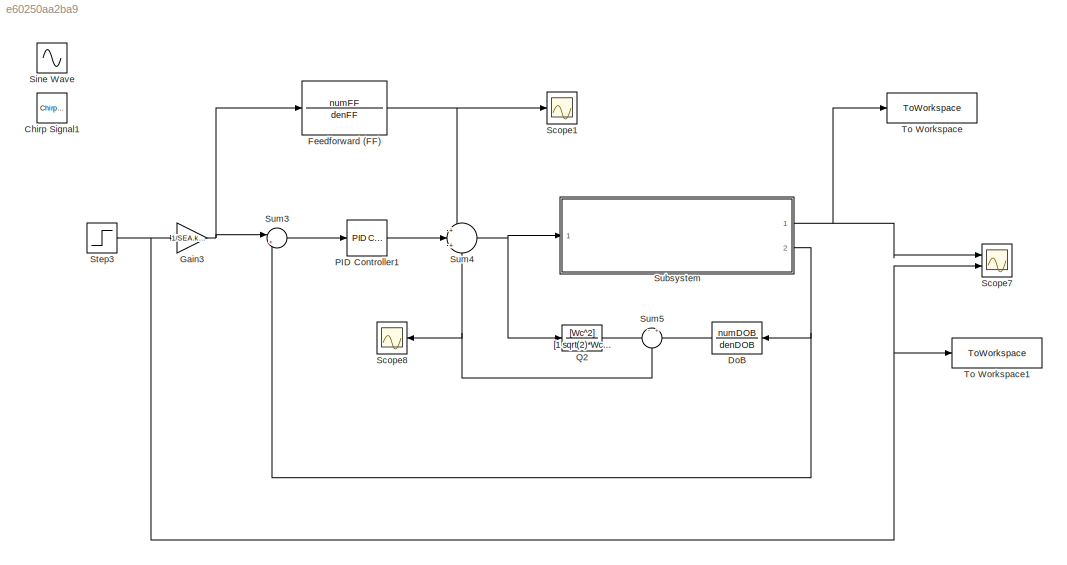
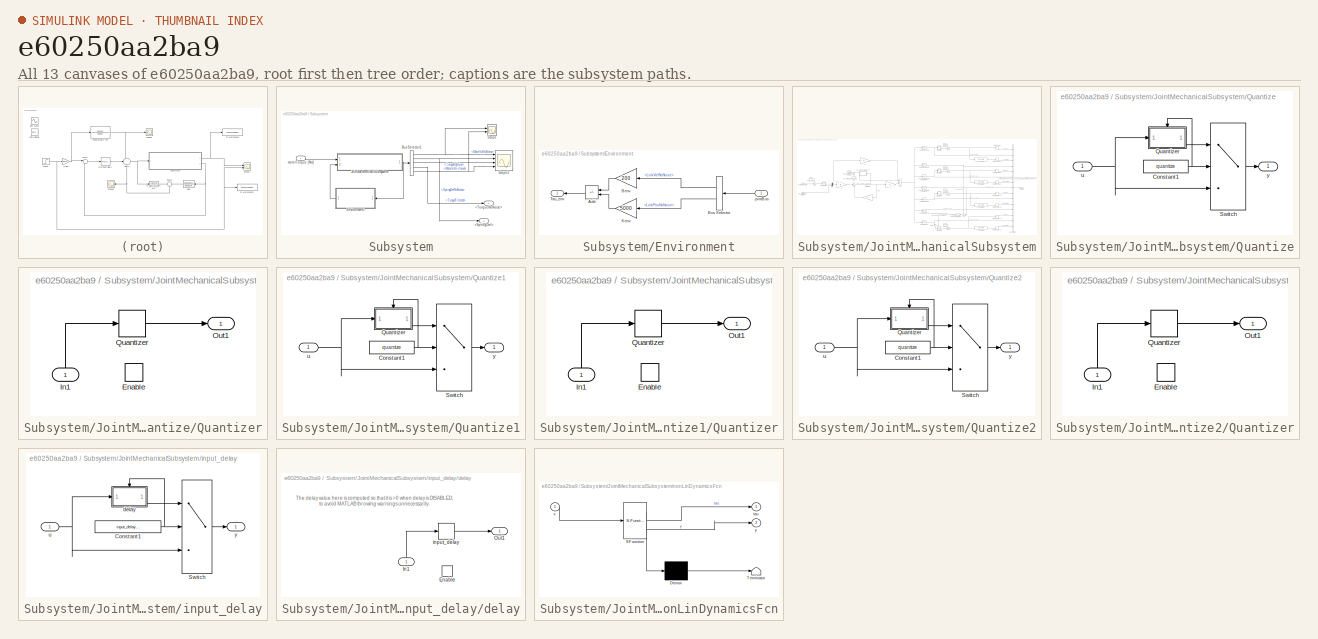
[diagram: thumbnail index - all 13 canvases of the model, root first then tree order]
MODEL slx_e60250aa2ba9
KIND model
CONFIG AbsTol = auto
CONFIG EnableMultiTasking = off
CONFIG FixedStep = 1e-4
CONFIG MaxStep = auto
CONFIG MinStep = auto
CONFIG RelTol = 1e-3
CONFIG SampleTimeConstraint = Unconstrained
CONFIG Solver = FixedStepAuto
CONFIG SolverName = FixedStepAuto
CONFIG StartTime = 0.0
CONFIG StopTime = 10
BLOCK [Reference] Chirp Signal1  REF=simulink/Sources/Chirp Signal
  Ports = [0, 1]
  SourceBlock = simulink/Sources/Chirp Signal
  SourceProductBaseCode = SL
  SourceType = chirp
BLOCK [TransferFcn] DoB
  Denominator = denDOB
  Numerator = numDOB
BLOCK [TransferFcn] Feedforward (FF)
  Denominator = denFF
  Numerator = numFF
BLOCK [Gain] Gain3
  Gain = 1/SEA.k_b
BLOCK [Reference] PID Controller1  REF=simulink/Continuous/PID Controller
  Ports = [1, 1]
  SourceBlock = simulink/Continuous/PID Controller
  SourceProductBaseCode = SL
  SourceType = PID 1dof
BLOCK [TransferFcn] Q2
  Denominator = [1 sqrt(2)*Wc Wc^2]
  Numerator = [Wc^2]
BLOCK [Scope] Scope1
  Floating = off
  NumInputPorts = 1
  Ports = [1]
  ScopeSpecificationString = Simulink.scopes.TimeScopeBlockCfg('CurrentConfiguration', extmgr.ConfigurationSet(extmgr.Configuration('Core','General UI',true),extmgr.Configuration('Core','Source UI',true),extmgr.Configuration('Sources','WiredSimulink',true,'DataLoggingVariableName','ScopeData1'),extmgr.Configuration('Visuals','Time Domain',true,'SerializedDisplays',{struct('MinYLimReal','-7.00599','MaxYLimReal','10.20823','YLa...<+1424ch>
BLOCK [Scope] Scope7
  Floating = off
  NumInputPorts = 2
  Ports = [2]
  ScopeSpecificationString = Simulink.scopes.TimeScopeBlockCfg('CurrentConfiguration', extmgr.ConfigurationSet(extmgr.Configuration('Core','General UI',true),extmgr.Configuration('Core','Source UI',true),extmgr.Configuration('Sources','WiredSimulink',true,'DataLoggingVariableName','ScopeData7'),extmgr.Configuration('Visuals','Time Domain',true,'SerializedDisplays',{struct('MinYLimReal','-1.35888','MaxYLimReal','12.22991','YLa...<+1493ch>
BLOCK [Scope] Scope8
  Floating = off
  NumInputPorts = 1
  Ports = [1]
  ScopeSpecificationString = Simulink.scopes.TimeScopeBlockCfg('CurrentConfiguration', extmgr.ConfigurationSet(extmgr.Configuration('Core','General UI',true),extmgr.Configuration('Core','Source UI',true),extmgr.Configuration('Sources','WiredSimulink',true,'DataLoggingVariableName','ScopeData8'),extmgr.Configuration('Visuals','Time Domain',true,'SerializedDisplays',{struct('MinYLimReal','-446.11655','MaxYLimReal','519.22467','...<+1452ch>
BLOCK [Sin] Sine Wave
  Amplitude = 10
  Frequency = 27.632
  Ports = [0, 1]
  SampleTime = 0
BLOCK [Step] Step3
  After = 10
  SampleTime = 0
BLOCK [SubSystem] Subsystem
  Ports = [1, 2]
  RequestExecContextInheritance = off
BLOCK [Outport] Subsystem/<SpringDef>
  Port = 2
BLOCK [Outport] Subsystem/<TorqueNoNoise>
BLOCK [BusSelector] Subsystem/Bus Selector1
  OutputSignals = MotorVelNoNoise,SpringDefNoNoise,TorqueNoNoise,TorqueFiltered,MotorVelFiltered
  Ports = [1, 5]
BLOCK [SubSystem] Subsystem/Environment
  Ports = [1, 1]
  RequestExecContextInheritance = off
BLOCK [Sum] Subsystem/Environment/Add
  IconShape = rectangular
  Inputs = --
  Ports = [2, 1]
BLOCK [Gain] Subsystem/Environment/Benv
  Gain = 200
BLOCK [BusSelector] Subsystem/Environment/Bus Selector
  OutputSignals = LinkVelNoNoise,LinkPosNoNoise
  Ports = [1, 2]
BLOCK [Gain] Subsystem/Environment/Kenv
  Gain = 5000
BLOCK [Outport] Subsystem/Environment/Tau_env
BLOCK [Inport] Subsystem/Environment/jointBus
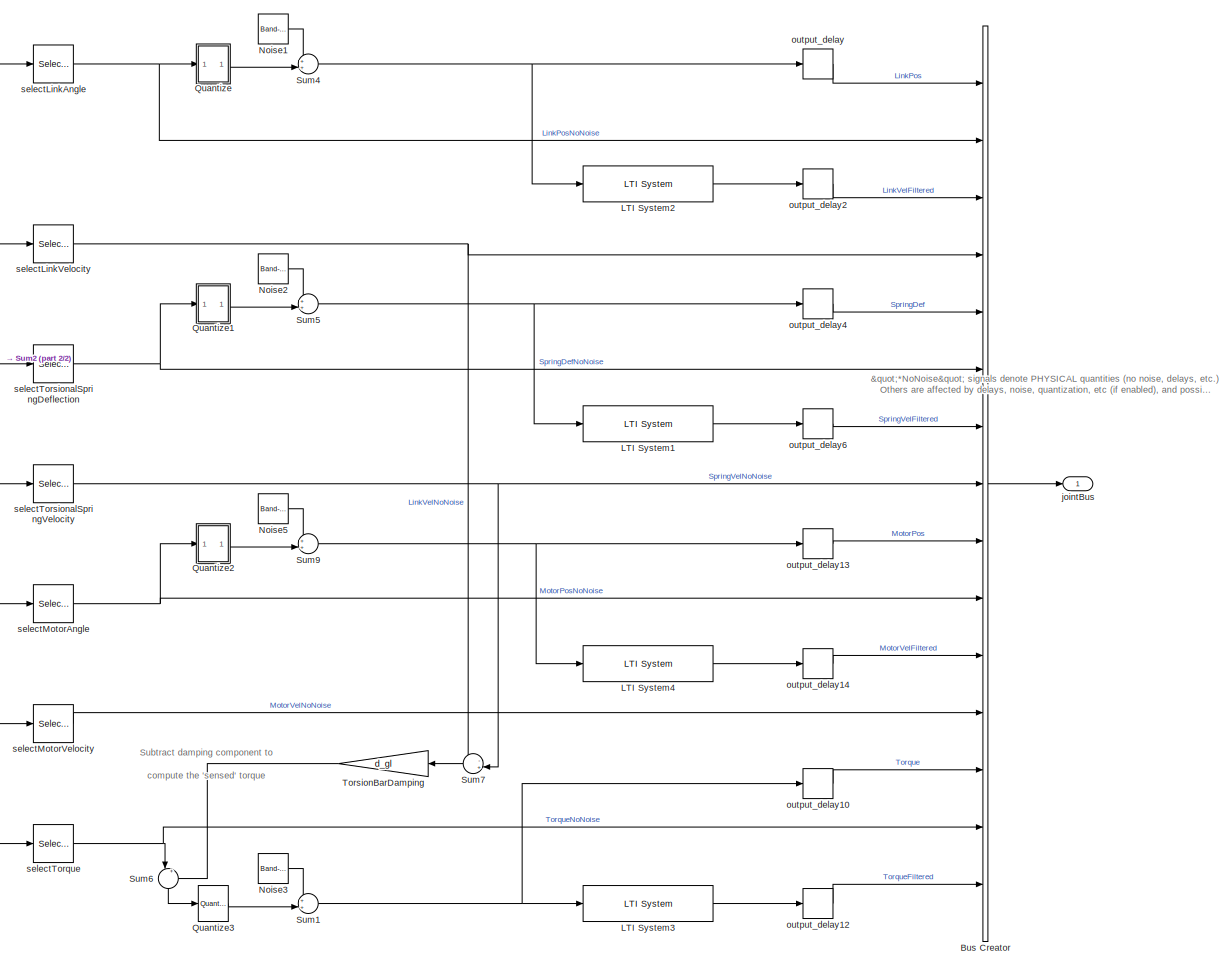
[diagram: Subsystem/JointMechanicalSubsystem - part 1/2, right side, full height]
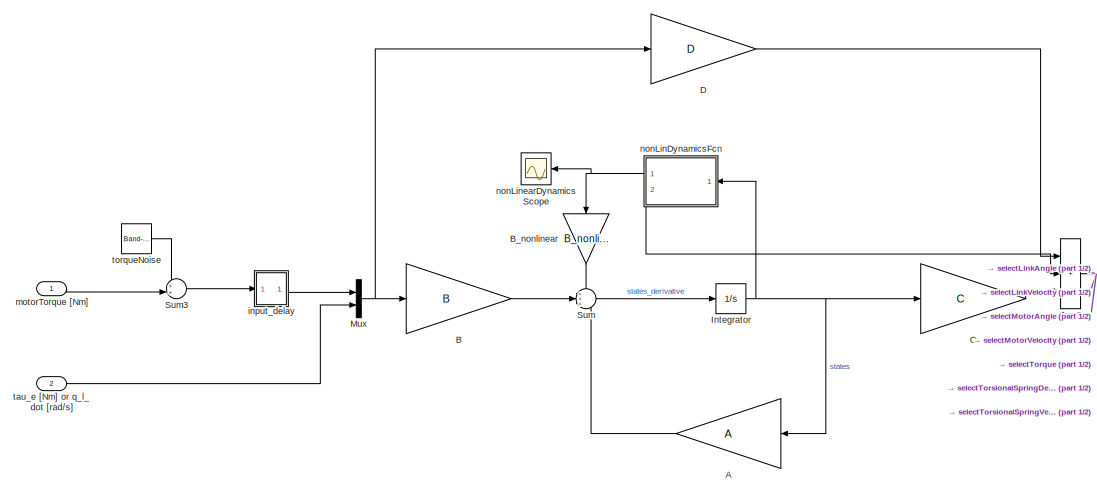
[diagram: Subsystem/JointMechanicalSubsystem - part 2/2, middle left region]
BLOCK [SubSystem] Subsystem/JointMechanicalSubsystem
  AncestorBlock = cjt_library_models/Joint models/JointMechanicalSubsystem
  Ports = [2, 1]
  RequestExecContextInheritance = off
BLOCK [Gain] Subsystem/JointMechanicalSubsystem/A
  Gain = A
  Multiplication = Matrix(K*u)
BLOCK [Gain] Subsystem/JointMechanicalSubsystem/B
  Gain = B
  Multiplication = Matrix(K*u)
BLOCK [Gain] Subsystem/JointMechanicalSubsystem/B_nonlinear
  Gain = B_nonlinear
  NameLocation = left
BLOCK [BusCreator] Subsystem/JointMechanicalSubsystem/Bus Creator
  DisplayOption = bar
  InheritFromInputs = on
  Inputs = 15
  Ports = [15, 1]
BLOCK [Gain] Subsystem/JointMechanicalSubsystem/C
  Gain = C
  Multiplication = Matrix(K*u)
  NameLocation = top
BLOCK [Gain] Subsystem/JointMechanicalSubsystem/D
  Gain = D
  Multiplication = Matrix(K*u)
BLOCK [Integrator] Subsystem/JointMechanicalSubsystem/Integrator
  Ports = [1, 1]
BLOCK [Reference] Subsystem/JointMechanicalSubsystem/LTI System1  REF=cstblocks/LTI System
  Ports = [1, 1]
  SourceBlock = cstblocks/LTI System
  SourceProductBaseCode = CT
  SourceType = LTI Block
BLOCK [Reference] Subsystem/JointMechanicalSubsystem/LTI System2  REF=cstblocks/LTI System
  Ports = [1, 1]
  SourceBlock = cstblocks/LTI System
  SourceProductBaseCode = CT
  SourceType = LTI Block
BLOCK [Reference] Subsystem/JointMechanicalSubsystem/LTI System3  REF=cstblocks/LTI System
  Ports = [1, 1]
  SourceBlock = cstblocks/LTI System
  SourceProductBaseCode = CT
  SourceType = LTI Block
BLOCK [Reference] Subsystem/JointMechanicalSubsystem/LTI System4  REF=cstblocks/LTI System
  Ports = [1, 1]
  SourceBlock = cstblocks/LTI System
  SourceProductBaseCode = CT
  SourceType = LTI Block
BLOCK [Mux] Subsystem/JointMechanicalSubsystem/Mux
  DisplayOption = bar
  Inputs = 2
  Ports = [2, 1]
BLOCK [Reference] Subsystem/JointMechanicalSubsystem/Noise1  REF=simulink/Sources/Band-Limited
White Noise
  Ports = [0, 1]
  SourceBlock = simulink/Sources/Band-Limited\nWhite Noise
  SourceProductBaseCode = SL
  SourceType = Band-Limited White Noise.
BLOCK [Reference] Subsystem/JointMechanicalSubsystem/Noise2  REF=simulink/Sources/Band-Limited
White Noise
  Ports = [0, 1]
  SourceBlock = simulink/Sources/Band-Limited\nWhite Noise
  SourceProductBaseCode = SL
  SourceType = Band-Limited White Noise.
BLOCK [Reference] Subsystem/JointMechanicalSubsystem/Noise3  REF=simulink/Sources/Band-Limited
White Noise
  Ports = [0, 1]
  SourceBlock = simulink/Sources/Band-Limited\nWhite Noise
  SourceProductBaseCode = SL
  SourceType = Band-Limited White Noise.
BLOCK [Reference] Subsystem/JointMechanicalSubsystem/Noise5  REF=simulink/Sources/Band-Limited
White Noise
  Ports = [0, 1]
  SourceBlock = simulink/Sources/Band-Limited\nWhite Noise
  SourceProductBaseCode = SL
  SourceType = Band-Limited White Noise.
BLOCK [SubSystem] Subsystem/JointMechanicalSubsystem/Quantize
  Ports = [1, 1]
  RequestExecContextInheritance = off
BLOCK [Constant] Subsystem/JointMechanicalSubsystem/Quantize/Constant1
  Value = quantize
BLOCK [SubSystem] Subsystem/JointMechanicalSubsystem/Quantize/Quantizer
  Ports = [1, 1, 1]
  RequestExecContextInheritance = off
BLOCK [EnablePort] Subsystem/JointMechanicalSubsystem/Quantize/Quantizer/Enable
  Ports = []
BLOCK [Inport] Subsystem/JointMechanicalSubsystem/Quantize/Quantizer/In1
  NameLocation = right
BLOCK [Outport] Subsystem/JointMechanicalSubsystem/Quantize/Quantizer/Out1
BLOCK [Quantizer] Subsystem/JointMechanicalSubsystem/Quantize/Quantizer/Quantizer
  QuantizationInterval = 1/(2^quantize_bits)
BLOCK [Switch] Subsystem/JointMechanicalSubsystem/Quantize/Switch
  Criteria = u2 > Threshold
  InputSameDT = off
  SaturateOnIntegerOverflow = off
  Threshold = 0.5
BLOCK [Inport] Subsystem/JointMechanicalSubsystem/Quantize/u
BLOCK [Outport] Subsystem/JointMechanicalSubsystem/Quantize/y
BLOCK [SubSystem] Subsystem/JointMechanicalSubsystem/Quantize1
  Ports = [1, 1]
  RequestExecContextInheritance = off
BLOCK [Constant] Subsystem/JointMechanicalSubsystem/Quantize1/Constant1
  Value = quantize
BLOCK [SubSystem] Subsystem/JointMechanicalSubsystem/Quantize1/Quantizer
  Ports = [1, 1, 1]
  RequestExecContextInheritance = off
BLOCK [EnablePort] Subsystem/JointMechanicalSubsystem/Quantize1/Quantizer/Enable
  Ports = []
BLOCK [Inport] Subsystem/JointMechanicalSubsystem/Quantize1/Quantizer/In1
  NameLocation = right
BLOCK [Outport] Subsystem/JointMechanicalSubsystem/Quantize1/Quantizer/Out1
BLOCK [Quantizer] Subsystem/JointMechanicalSubsystem/Quantize1/Quantizer/Quantizer
  QuantizationInterval = 1/(2^quantize_bits)
BLOCK [Switch] Subsystem/JointMechanicalSubsystem/Quantize1/Switch
  Criteria = u2 > Threshold
  InputSameDT = off
  SaturateOnIntegerOverflow = off
  Threshold = 0.5
BLOCK [Inport] Subsystem/JointMechanicalSubsystem/Quantize1/u
BLOCK [Outport] Subsystem/JointMechanicalSubsystem/Quantize1/y
BLOCK [SubSystem] Subsystem/JointMechanicalSubsystem/Quantize2
  Ports = [1, 1]
  RequestExecContextInheritance = off
BLOCK [Constant] Subsystem/JointMechanicalSubsystem/Quantize2/Constant1
  Value = quantize
BLOCK [SubSystem] Subsystem/JointMechanicalSubsystem/Quantize2/Quantizer
  Ports = [1, 1, 1]
  RequestExecContextInheritance = off
BLOCK [EnablePort] Subsystem/JointMechanicalSubsystem/Quantize2/Quantizer/Enable
  Ports = []
BLOCK [Inport] Subsystem/JointMechanicalSubsystem/Quantize2/Quantizer/In1
  NameLocation = right
BLOCK [Outport] Subsystem/JointMechanicalSubsystem/Quantize2/Quantizer/Out1
BLOCK [Quantizer] Subsystem/JointMechanicalSubsystem/Quantize2/Quantizer/Quantizer
  QuantizationInterval = 1/(2^quantize_bits)
BLOCK [Switch] Subsystem/JointMechanicalSubsystem/Quantize2/Switch
  Criteria = u2 > Threshold
  InputSameDT = off
  SaturateOnIntegerOverflow = off
  Threshold = 0.5
BLOCK [Inport] Subsystem/JointMechanicalSubsystem/Quantize2/u
BLOCK [Outport] Subsystem/JointMechanicalSubsystem/Quantize2/y
BLOCK [Reference] Subsystem/JointMechanicalSubsystem/Quantize3  REF=cjt_library_models/Joint models/JointMechanicalSubsystem/Quantize2
  Ports = [1, 1]
  SourceBlock = cjt_library_models/Joint models/JointMechanicalSubsystem/Quantize2
  SourceType = SubSystem
BLOCK [Sum] Subsystem/JointMechanicalSubsystem/Sum
  Inputs = +++
  Ports = [3, 1]
BLOCK [Sum] Subsystem/JointMechanicalSubsystem/Sum1
  Inputs = ++|
  Ports = [2, 1]
BLOCK [Sum] Subsystem/JointMechanicalSubsystem/Sum2
  IconShape = rectangular
  Inputs = +++
  Ports = [3, 1]
BLOCK [Sum] Subsystem/JointMechanicalSubsystem/Sum3
  Inputs = ++|
  Ports = [2, 1]
BLOCK [Sum] Subsystem/JointMechanicalSubsystem/Sum4
  Inputs = ++|
  Ports = [2, 1]
BLOCK [Sum] Subsystem/JointMechanicalSubsystem/Sum5
  Inputs = ++|
  Ports = [2, 1]
BLOCK [Sum] Subsystem/JointMechanicalSubsystem/Sum6
  Inputs = |+-
  NameLocation = left
  Ports = [2, 1]
BLOCK [Sum] Subsystem/JointMechanicalSubsystem/Sum7
  Inputs = -+|
  NameLocation = top
  Ports = [2, 1]
BLOCK [Sum] Subsystem/JointMechanicalSubsystem/Sum9
  Inputs = ++|
  Ports = [2, 1]
BLOCK [Gain] Subsystem/JointMechanicalSubsystem/TorsionBarDamping
  Gain = d_gl
  NameLocation = top
BLOCK [SubSystem] Subsystem/JointMechanicalSubsystem/input_delay
  Ports = [1, 1]
  RequestExecContextInheritance = off
BLOCK [Constant] Subsystem/JointMechanicalSubsystem/input_delay/Constant1
  Value = input_delay_enable
BLOCK [Switch] Subsystem/JointMechanicalSubsystem/input_delay/Switch
  Criteria = u2 > Threshold
  InputSameDT = off
  SaturateOnIntegerOverflow = off
BLOCK [SubSystem] Subsystem/JointMechanicalSubsystem/input_delay/delay
  Ports = [1, 1, 1]
  RequestExecContextInheritance = off
BLOCK [EnablePort] Subsystem/JointMechanicalSubsystem/input_delay/delay/Enable
  Ports = []
BLOCK [Inport] Subsystem/JointMechanicalSubsystem/input_delay/delay/In1
  NameLocation = right
BLOCK [Outport] Subsystem/JointMechanicalSubsystem/input_delay/delay/Out1
BLOCK [TransportDelay] Subsystem/JointMechanicalSubsystem/input_delay/delay/input_delay
  DelayTime = input_delay * jointObj.Ts + 1 - input_delay_enable
  Ports = [1, 1]
  TransDelayFeedthrough = on
BLOCK [Inport] Subsystem/JointMechanicalSubsystem/input_delay/u
BLOCK [Outport] Subsystem/JointMechanicalSubsystem/input_delay/y
BLOCK [Outport] Subsystem/JointMechanicalSubsystem/jointBus
BLOCK [Inport] Subsystem/JointMechanicalSubsystem/motorTorque [Nm]
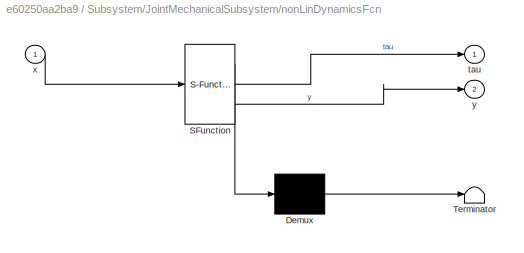
BLOCK [SubSystem] Subsystem/JointMechanicalSubsystem/nonLinDynamicsFcn
  ErrorFcn = Stateflow.Translate.translate
  PermitHierarchicalResolution = ExplicitOnly
  Ports = [1, 2]
  RequestExecContextInheritance = off
  SFBlockType = MATLAB Function
  TreatAsAtomicUnit = on
BLOCK [Demux] Subsystem/JointMechanicalSubsystem/nonLinDynamicsFcn/ Demux 
  Outputs = 1
  Ports = [1, 1]
BLOCK [S-Function] Subsystem/JointMechanicalSubsystem/nonLinDynamicsFcn/ SFunction 
  EnableBusSupport = on
  FunctionName = sf_sfun
  PortCounts = [1 3]
  Ports = [1, 3]
  SFcnIsStateOwnerBlock = off
  SFunctionDeploymentMode = off
  Tag = Stateflow S-Function 1
BLOCK [Terminator] Subsystem/JointMechanicalSubsystem/nonLinDynamicsFcn/ Terminator 
BLOCK [Outport] Subsystem/JointMechanicalSubsystem/nonLinDynamicsFcn/tau
  PortDimensions = 4
BLOCK [Inport] Subsystem/JointMechanicalSubsystem/nonLinDynamicsFcn/x
BLOCK [Outport] Subsystem/JointMechanicalSubsystem/nonLinDynamicsFcn/y
  Port = 2
  PortDimensions = 7
BLOCK [Scope] Subsystem/JointMechanicalSubsystem/nonLinearDynamicsScope
  Floating = off
  NameLocation = top
  NumInputPorts = 1
  Ports = [1]
  ScopeSpecificationString = Simulink.scopes.TimeScopeBlockCfg('CurrentConfiguration', extmgr.ConfigurationSet(extmgr.Configuration('Core','General UI',true),extmgr.Configuration('Core','Source UI',true),extmgr.Configuration('Sources','WiredSimulink',true,'DataLoggingLimitDataPoints',true,'DataLoggingSaveFormat','Array','DataLoggingDecimation','1','DataLoggingDecimateData',true),extmgr.Configuration('Visuals','Time Domain',tr...<+1749ch>
BLOCK [TransportDelay] Subsystem/JointMechanicalSubsystem/output_delay
  DelayTime = output_delay * jointObj.Ts
  Ports = [1, 1]
BLOCK [TransportDelay] Subsystem/JointMechanicalSubsystem/output_delay10
  DelayTime = output_delay * jointObj.Ts
  Ports = [1, 1]
BLOCK [TransportDelay] Subsystem/JointMechanicalSubsystem/output_delay12
  DelayTime = output_delay * jointObj.Ts
  Ports = [1, 1]
BLOCK [TransportDelay] Subsystem/JointMechanicalSubsystem/output_delay13
  DelayTime = output_delay * jointObj.Ts
  Ports = [1, 1]
BLOCK [TransportDelay] Subsystem/JointMechanicalSubsystem/output_delay14
  DelayTime = output_delay * jointObj.Ts
  Ports = [1, 1]
BLOCK [TransportDelay] Subsystem/JointMechanicalSubsystem/output_delay2
  DelayTime = output_delay * jointObj.Ts
  Ports = [1, 1]
BLOCK [TransportDelay] Subsystem/JointMechanicalSubsystem/output_delay4
  DelayTime = output_delay * jointObj.Ts
  Ports = [1, 1]
BLOCK [TransportDelay] Subsystem/JointMechanicalSubsystem/output_delay6
  DelayTime = output_delay * jointObj.Ts
  Ports = [1, 1]
BLOCK [Selector] Subsystem/JointMechanicalSubsystem/selectLinkAngle
  IndexOptions = Index vector (dialog),Select all
  Indices = 3,1
  InputPortWidth = 3
  NumberOfDimensions = 2
  OutputSizes = 1,1
  Ports = [1, 1]
BLOCK [Selector] Subsystem/JointMechanicalSubsystem/selectLinkVelocity
  IndexOptions = Index vector (dialog),Select all
  Indices = 6,1
  InputPortWidth = 3
  NumberOfDimensions = 2
  OutputSizes = 1,1
  Ports = [1, 1]
BLOCK [Selector] Subsystem/JointMechanicalSubsystem/selectMotorAngle
  IndexOptions = Index vector (dialog),Select all
  Indices = 1,1
  InputPortWidth = 3
  NumberOfDimensions = 2
  OutputSizes = 1,1
  Ports = [1, 1]
BLOCK [Selector] Subsystem/JointMechanicalSubsystem/selectMotorVelocity
  IndexOptions = Index vector (dialog),Select all
  Indices = 4,1
  InputPortWidth = 3
  NumberOfDimensions = 2
  OutputSizes = 1,1
  Ports = [1, 1]
BLOCK [Selector] Subsystem/JointMechanicalSubsystem/selectTorque
  IndexOptions = Index vector (dialog),Select all
  Indices = 7,1
  InputPortWidth = 3
  NumberOfDimensions = 2
  OutputSizes = 1,1
  Ports = [1, 1]
BLOCK [Selector] Subsystem/JointMechanicalSubsystem/selectTorsionalSpringDeflection
  IndexOptions = Index vector (dialog),Select all
  Indices = 2,1
  InputPortWidth = 3
  NumberOfDimensions = 2
  OutputSizes = 1,1
  Ports = [1, 1]
BLOCK [Selector] Subsystem/JointMechanicalSubsystem/selectTorsionalSpringVelocity
  IndexOptions = Index vector (dialog),Select all
  Indices = 5,1
  InputPortWidth = 3
  NumberOfDimensions = 2
  OutputSizes = 1,1
  Ports = [1, 1]
BLOCK [Inport] Subsystem/JointMechanicalSubsystem/tau_e [Nm] or q_l_dot [rad//s]
  Port = 2
BLOCK [Reference] Subsystem/JointMechanicalSubsystem/torqueNoise  REF=simulink/Sources/Band-Limited
White Noise
  Ports = [0, 1]
  SourceBlock = simulink/Sources/Band-Limited\nWhite Noise
  SourceProductBaseCode = SL
  SourceType = Band-Limited White Noise.
BLOCK [Scope] Subsystem/Scope
  Floating = off
  NumInputPorts = 2
  Ports = [2]
  ScopeSpecificationString = Simulink.scopes.TimeScopeBlockCfg('CurrentConfiguration', extmgr.ConfigurationSet(extmgr.Configuration('Core','General UI',true),extmgr.Configuration('Core','Source UI',true),extmgr.Configuration('Sources','WiredSimulink',true,'DataLoggingVariableName','ScopeData1'),extmgr.Configuration('Visuals','Time Domain',true,'SerializedDisplays',{struct('MinYLimReal','-0.6411','MaxYLimReal','5.75378','YLabe...<+2132ch>
BLOCK [Scope] Subsystem/Scope2
  Floating = off
  NumInputPorts = 4
  Ports = [4]
  ScopeSpecificationString = Simulink.scopes.TimeScopeBlockCfg('CurrentConfiguration', extmgr.ConfigurationSet(extmgr.Configuration('Core','General UI',true),extmgr.Configuration('Core','Source UI',true),extmgr.Configuration('Sources','WiredSimulink',true,'DataLoggingVariableName','ScopeData1'),extmgr.Configuration('Visuals','Time Domain',true,'SerializedDisplays',{struct('MinYLimReal','-106.26044','MaxYLimReal','809.40456','...<+3543ch>
BLOCK [Inport] Subsystem/motorTorque [Nm]
BLOCK [Sum] Sum3
  Inputs = |+-
  Ports = [2, 1]
BLOCK [Sum] Sum4
  Inputs = +|+|-
  Ports = [3, 1]
BLOCK [Sum] Sum5
  Inputs = -|+
  NameLocation = left
  Ports = [2, 1]
BLOCK [ToWorkspace] To Workspace
  Commented = on
  FixptAsFi = on
  MaxDataPoints = inf
  Ports = [1]
  SampleTime = -1
  Save2DSignal = 2-D array (concatenate along first dimension)
  VariableName = ff_y
BLOCK [ToWorkspace] To Workspace1
  Commented = on
  FixptAsFi = on
  MaxDataPoints = inf
  Ports = [1]
  SampleTime = -1
  Save2DSignal = 2-D array (concatenate along first dimension)
  VariableName = ff_u
ANNOTATION Subsystem/JointMechanicalSubsystem: Subtract damping component to compute the 'sensed' torque
ANNOTATION Subsystem/JointMechanicalSubsystem: "*NoNoise" signals denote PHYSICAL quantities (no noise, delays, etc.) Others are affected by delays, noise, quantization, etc (if enabled), and possibly filtered ("*Filtered")
ANNOTATION Subsystem/JointMechanicalSubsystem/input_delay/delay: The delay value here is computed so that it is >0 when delay is DISABLED, to avoid MATLAB throwing warnings unnecessarily.
LINE DoB:1 -> Sum5:2
NET Feedforward (FF):1 -> Scope1:1, Sum4:1
NET Gain3:1 -> Feedforward (FF):1, Sum3:1
LINE PID Controller1:1 -> Sum4:2
LINE Q2:1 -> Sum5:1
NET Step3:1 -> Gain3:1, Scope7:2, To Workspace1:1
NET Subsystem/Bus Selector1:1 -> Subsystem/Scope2:1, Subsystem/Scope:1
NET Subsystem/Bus Selector1:2 -> Subsystem/<SpringDef>:1, Subsystem/Scope2:2
LINE Subsystem/Bus Selector1:3 -> Subsystem/Scope2:3
LINE Subsystem/Bus Selector1:4 -> Subsystem/<TorqueNoNoise>:1
NET Subsystem/Bus Selector1:5 -> Subsystem/Scope2:4, Subsystem/Scope:2
LINE Subsystem/Environment/Add:1 -> Subsystem/Environment/Tau_env:1
LINE Subsystem/Environment/Benv:1 -> Subsystem/Environment/Add:1
LINE Subsystem/Environment/Bus Selector:1 -> Subsystem/Environment/Benv:1
LINE Subsystem/Environment/Bus Selector:2 -> Subsystem/Environment/Kenv:1
LINE Subsystem/Environment/Kenv:1 -> Subsystem/Environment/Add:2
LINE Subsystem/Environment/jointBus:1 -> Subsystem/Environment/Bus Selector:1
LINE Subsystem/Environment:1 -> Subsystem/JointMechanicalSubsystem:2
NET Subsystem/JointMechanicalSubsystem:1 -> Subsystem/Bus Selector1:1, Subsystem/Environment:1
LINE Subsystem/motorTorque [Nm]:1 -> Subsystem/JointMechanicalSubsystem:1
NET Subsystem:1 -> Scope7:1, To Workspace:1
NET Subsystem:2 -> DoB:1, Sum3:2
LINE Sum3:1 -> PID Controller1:1
NET Sum4:1 -> Q2:1, Subsystem:1
NET Sum5:1 -> Scope8:1, Sum4:3
note: NET lines group one-source signal fan-out (src -> all destinations, sorted); 1:1 wires keep LINE
CHART Subsystem/JointMechanicalSubsystem/nonLinDynamicsFcn states=1 transitions=1
  STATE_LABEL 'eML_blk_kernel()'
  STATE_LABEL 'SCRIPT:\nfunction [tau, y] = nonLinDynamics(x)\n%#codegen\n\nparams.a_CU = 0.003900;\nparams.c_CU = 380.000000;\nparams.c_FE = 460.000000;\nparams.diam = 98.000000;\nparams.len = 166.000000;\nparams.m = 3.400000;\nparams.I_m = 0.000278;\nparams.I_g = 0.000000;\nparams.I_l = 0.070000;\nparams.k_g = 0.000000;\nparams.k_b = 5000.000000;\nparams.d_m = 0.001500;\nparams.d_g = 0.000000;\nparams.d_l = 0.005000;\nparams.d_...<+1152ch>'
CHART  states=0 transitions=0
